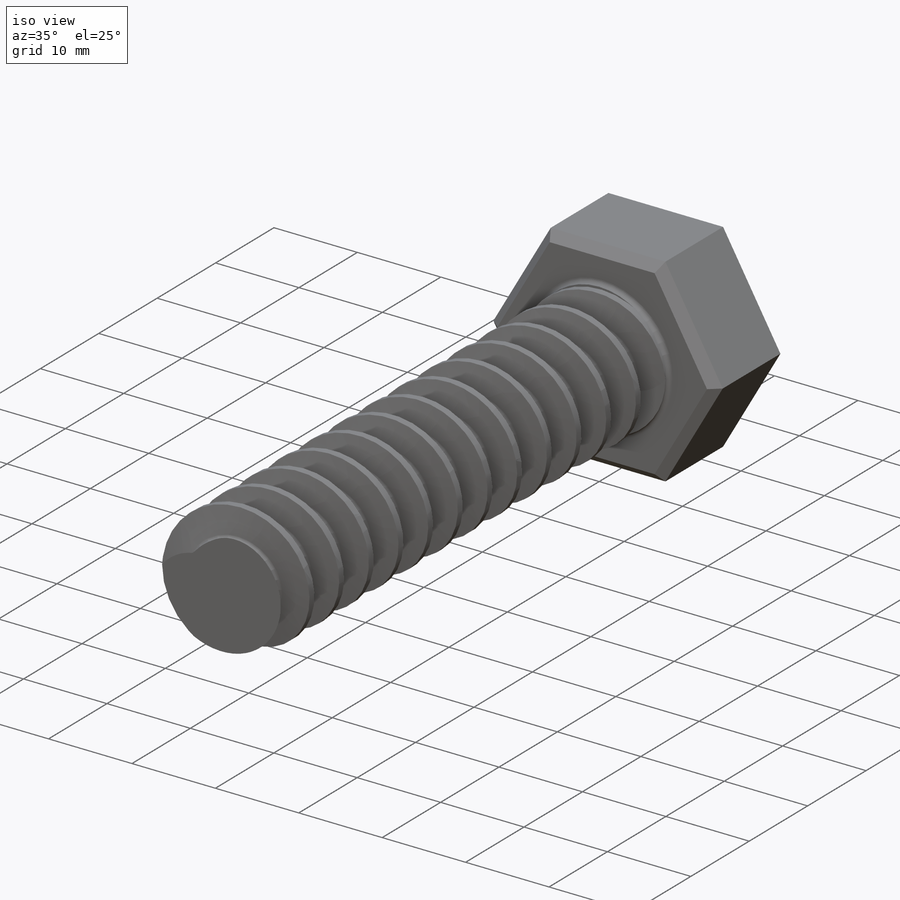
[diagram: iso view]
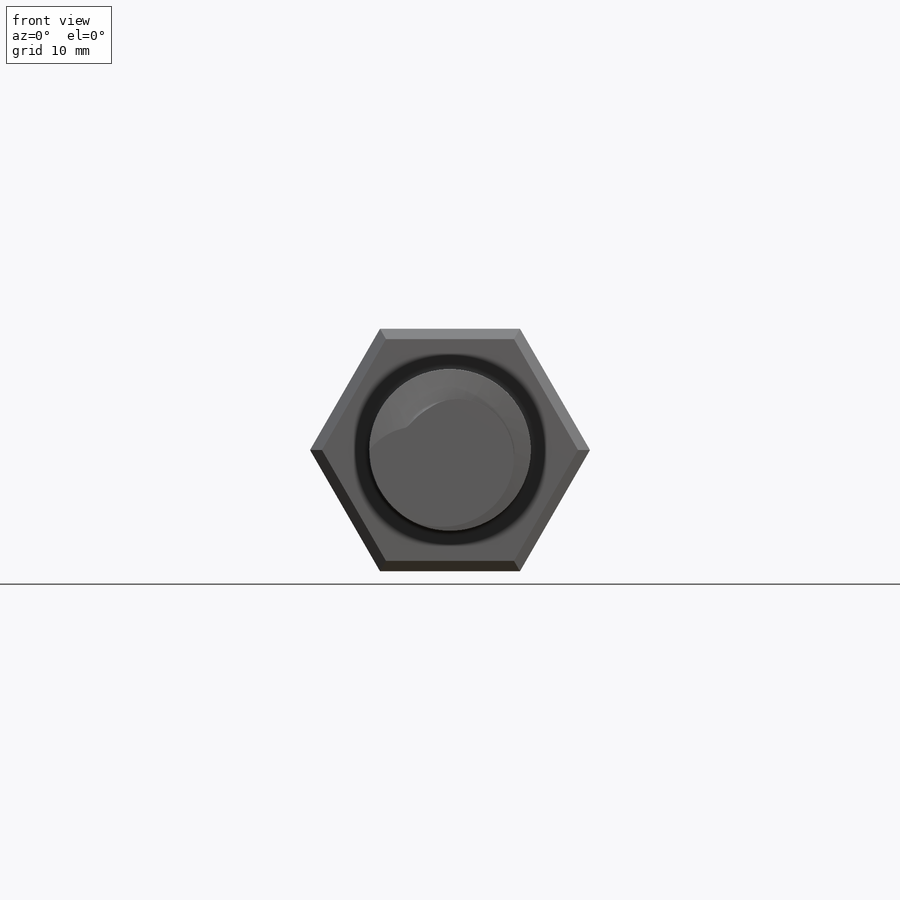
[diagram: front view]
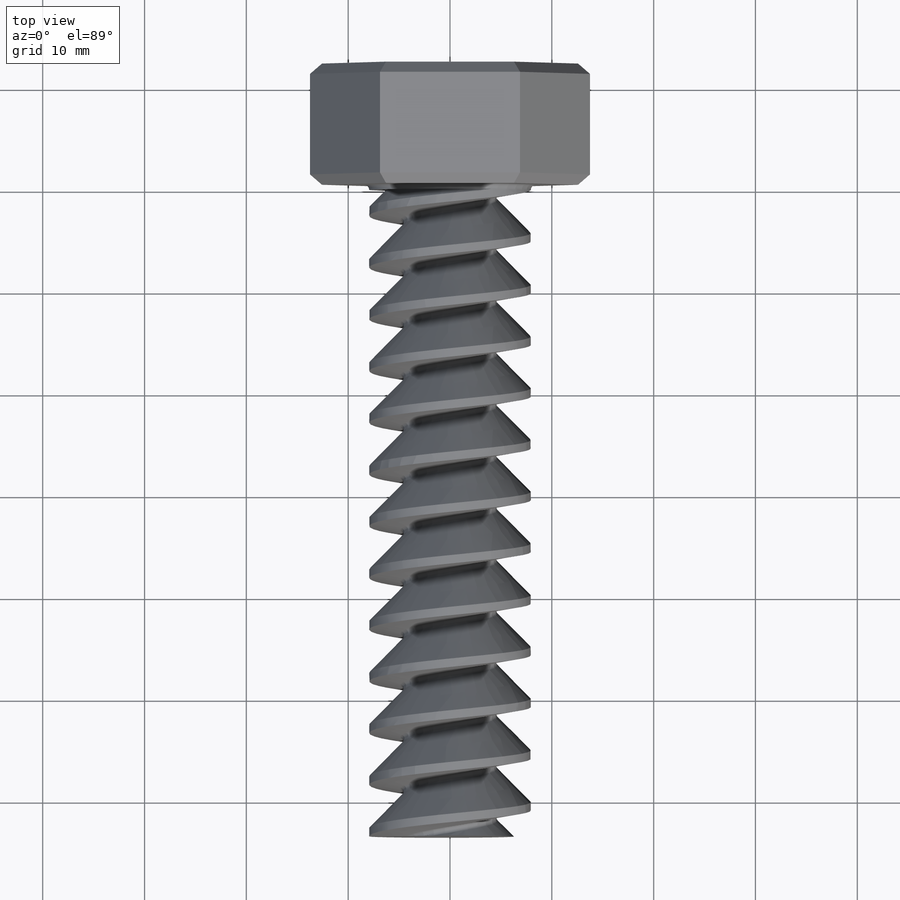
[diagram: top view]
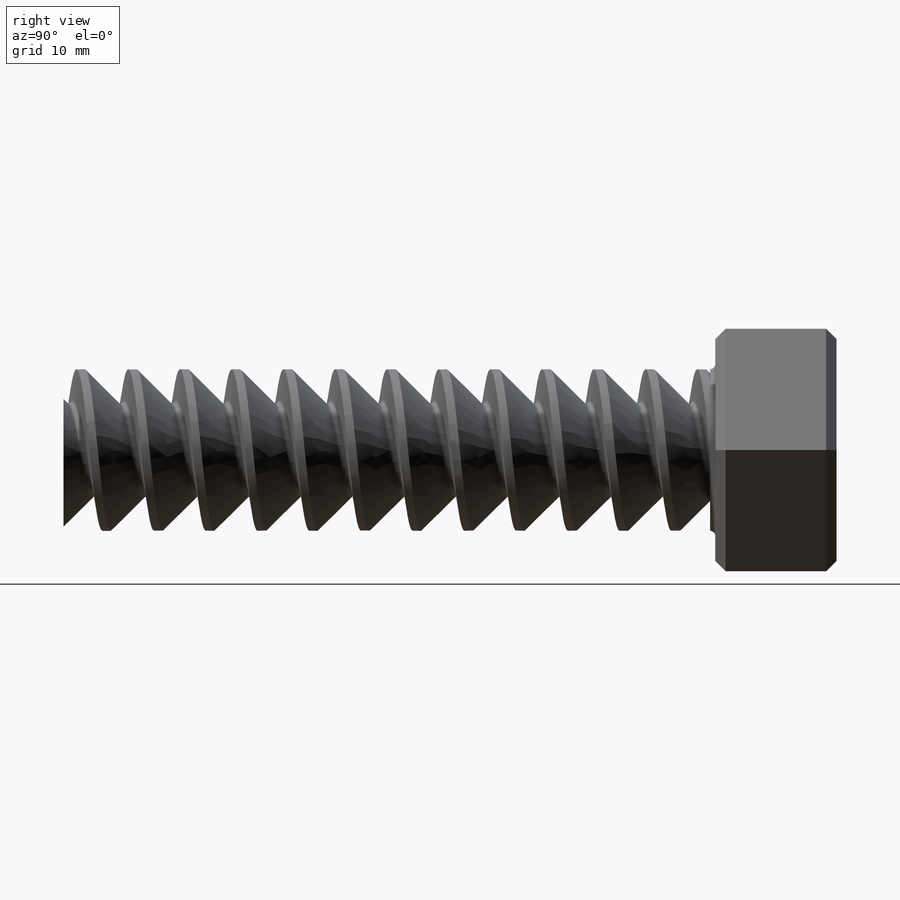
[diagram: right view]
SOLIDWORKS PART (.sldprt)
format: sldprt  version: not decoded by parser v0  size: 716,800 bytes
history: native  units: mm
features: sketch x5, extrude x3, material x1, helix x1, sweep x1, fillet x1, chamfer x1 (+12 scaffold rows collapsed)
feature tree (25):
  scaffold x12  (default folders/planes/origin — collapsed)
  material  "ABS"
  sketch  "Sketch1"  dims[D1=15.875mm]
  extrude  "Boss-Extrude1"  Depth=63.5mm
  sketch  "Sketch2"
  helix  "Helix/Spiral1"  Pitch=81.28mm
  sketch  "Sketch3"  dims[c1.D5=~0.362712mm c1.D1=~0.738124mm c1.D2=~4.524248mm c1.D3=~1.893062mm c2.D3=7.0deg c2.D4=~1.893062mm c3.D4=45.0deg]
  sweep  "Cut-Sweep1"
  sketch  "Sketch5"
  extrude  "Boss-Extrude3"  Depth=0.508mm
  sketch  "Sketch6"  dims[D1=23.8125mm]
  extrude  "Boss-Extrude4"  Depth=11.90625mm
  fillet  "Fillet1"  Radius=0.508mm
  chamfer  "Chamfer1"  Distance=1.016mm Angle=45deg
decode coverage: 9 of 12 modeling features carry decoded parameters
note: ~ marks probable driven/reference dimensions
note: suppression state not decoded; provenance and decode notes live in map.json
